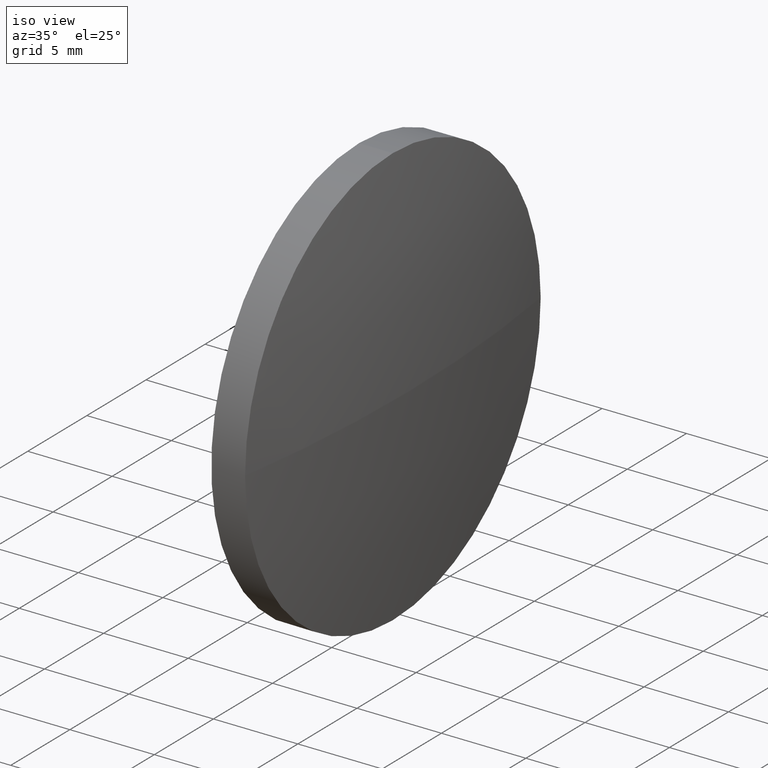
[diagram: clean part render]
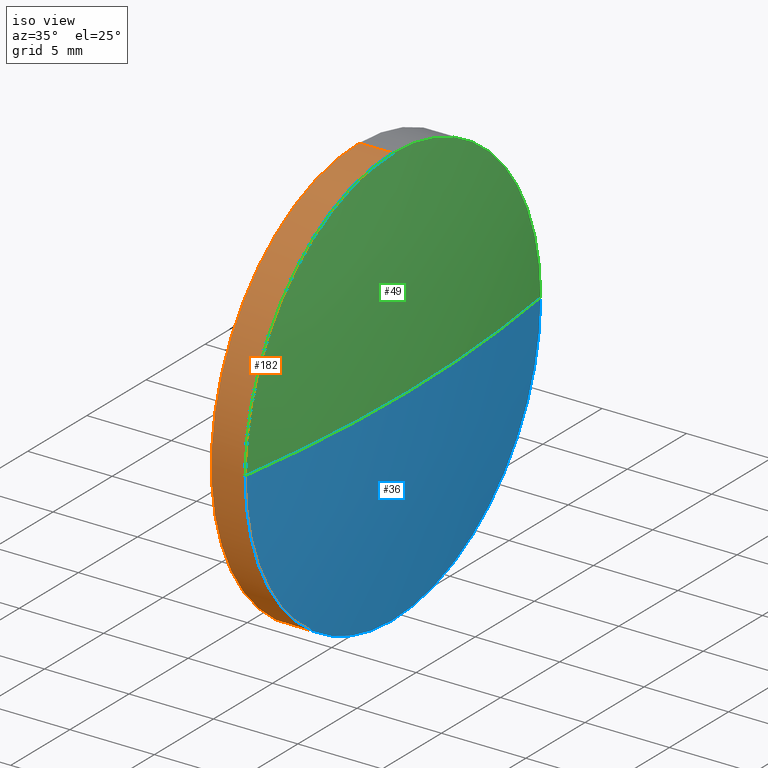
[diagram: same view with three faces highlighted in distinct colors, each labeled with its STEP entity id]
A machine part, iso view with three faces highlighted in distinct colors.
Their STEP definitions:

[orange] entity #182 — the highlighted cylindrical surface (partial cylindrical patch) has radius 12.5 mm, axis along (-1, -0, -0).
#1 = AXIS2_PLACEMENT_3D ( 'NONE', #116, #34, #56 ) ;
#2 = DIRECTION ( 'NONE',  ( -1.000000000000000000, -0.0000000000000000000, -0.0000000000000000000 ) ) ;
#11 = EDGE_CURVE ( 'NONE', #112, #133, #66, .T. ) ;
#17 = DIRECTION ( 'NONE',  ( -1.000000000000000000, -0.0000000000000000000, -0.0000000000000000000 ) ) ;
#25 = CIRCLE ( 'NONE', #64, 12.49999999999999600 ) ;
#34 = DIRECTION ( 'NONE',  ( -1.000000000000000000, -0.0000000000000000000, -0.0000000000000000000 ) ) ;
#37 = EDGE_CURVE ( 'NONE', #133, #82, #153, .T. ) ;
#38 = ORIENTED_EDGE ( 'NONE', *, *, #37, .F. ) ;
#44 = CARTESIAN_POINT ( 'NONE',  ( 481.2856830455023700, 78.34035694524027300, 0.0000000000000000000 ) ) ;
#45 = DIRECTION ( 'NONE',  ( -1.000000000000000000, -0.0000000000000000000, -0.0000000000000000000 ) ) ;
#46 = VERTEX_POINT ( 'NONE', #170 ) ;
#52 = CARTESIAN_POINT ( 'NONE',  ( 479.2856830455023700, 78.34035694524027300, -12.49999999999999600 ) ) ;
#54 = CARTESIAN_POINT ( 'NONE',  ( 479.2856830455023700, 78.34035694524027300, 12.49999999999999600 ) ) ;
#56 = DIRECTION ( 'NONE',  ( 0.0000000000000000000, 0.0000000000000000000, 1.000000000000000000 ) ) ;
#58 = DIRECTION ( 'NONE',  ( -1.000000000000000000, -0.0000000000000000000, -0.0000000000000000000 ) ) ;
#64 = AXIS2_PLACEMENT_3D ( 'NONE', #99, #58, #97 ) ;
#66 = LINE ( 'NONE', #185, #106 ) ;
#71 = ORIENTED_EDGE ( 'NONE', *, *, #186, .T. ) ;
#73 = CIRCLE ( 'NONE', #121, 12.49999999999999600 ) ;
#74 = CARTESIAN_POINT ( 'NONE',  ( 481.2856830455023700, 78.34035694524027300, 12.49999999999999600 ) ) ;
#82 = VERTEX_POINT ( 'NONE', #54 ) ;
#90 = DIRECTION ( 'NONE',  ( 0.0000000000000000000, 0.0000000000000000000, 1.000000000000000000 ) ) ;
#92 = FACE_OUTER_BOUND ( 'NONE', #110, .T. ) ;
#97 = DIRECTION ( 'NONE',  ( 0.0000000000000000000, 0.0000000000000000000, 1.000000000000000000 ) ) ;
#99 = CARTESIAN_POINT ( 'NONE',  ( 481.2856830455023700, 78.34035694524027300, 0.0000000000000000000 ) ) ;
#105 = ORIENTED_EDGE ( 'NONE', *, *, #152, .T. ) ;
#106 = VECTOR ( 'NONE', #17, 1000.000000000000000 ) ;
#110 = EDGE_LOOP ( 'NONE', ( #120, #151, #105, #71, #38 ) ) ;
#112 = VERTEX_POINT ( 'NONE', #138 ) ;
#116 = CARTESIAN_POINT ( 'NONE',  ( 477.2565754670653700, 78.34035694524027300, 0.0000000000000000000 ) ) ;
#117 = VECTOR ( 'NONE', #45, 1000.000000000000000 ) ;
#120 = ORIENTED_EDGE ( 'NONE', *, *, #11, .F. ) ;
#121 = AXIS2_PLACEMENT_3D ( 'NONE', #44, #179, #90 ) ;
#122 = CYLINDRICAL_SURFACE ( 'NONE', #1, 12.49999999999999600 ) ;
#133 = VERTEX_POINT ( 'NONE', #52 ) ;
#138 = CARTESIAN_POINT ( 'NONE',  ( 481.2856830455023700, 78.34035694524027300, -12.49999999999999600 ) ) ;
#140 = VERTEX_POINT ( 'NONE', #74 ) ;
#142 = CARTESIAN_POINT ( 'NONE',  ( 479.2856830455023700, 78.34035694524027300, 0.0000000000000000000 ) ) ;
#151 = ORIENTED_EDGE ( 'NONE', *, *, #165, .T. ) ;
#152 = EDGE_CURVE ( 'NONE', #46, #140, #73, .T. ) ;
#153 = CIRCLE ( 'NONE', #183, 12.49999999999999600 ) ;
#156 = DIRECTION ( 'NONE',  ( 0.0000000000000000000, 0.0000000000000000000, 1.000000000000000000 ) ) ;
#159 = LINE ( 'NONE', #162, #117 ) ;
#162 = CARTESIAN_POINT ( 'NONE',  ( 477.2565754670653700, 78.34035694524027300, 12.49999999999999600 ) ) ;
#165 = EDGE_CURVE ( 'NONE', #112, #46, #25, .T. ) ;
#170 = CARTESIAN_POINT ( 'NONE',  ( 481.2856830455023700, 65.84035694524028800, 0.0000000000000000000 ) ) ;
#179 = DIRECTION ( 'NONE',  ( -1.000000000000000000, -0.0000000000000000000, -0.0000000000000000000 ) ) ;
#182 = ADVANCED_FACE ( 'NONE', ( #92 ), #122, .T. ) ;
#183 = AXIS2_PLACEMENT_3D ( 'NONE', #142, #2, #156 ) ;
#185 = CARTESIAN_POINT ( 'NONE',  ( 477.2565754670653700, 78.34035694524027300, -12.49999999999999600 ) ) ;
#186 = EDGE_CURVE ( 'NONE', #140, #82, #159, .T. ) ;

[blue] entity #36 — the highlighted spherical surface has radius 82.7118 mm.
#5 = DIRECTION ( 'NONE',  ( 0.0000000000000000000, -1.224646799147353200E-016, 1.000000000000000000 ) ) ;
#10 = FACE_OUTER_BOUND ( 'NONE', #40, .T. ) ;
#14 = CARTESIAN_POINT ( 'NONE',  ( 481.2856830455023700, 90.84035694524031600, 1.530808498934187800E-015 ) ) ;
#15 = VERTEX_POINT ( 'NONE', #125 ) ;
#16 = DIRECTION ( 'NONE',  ( -1.000000000000000000, -0.0000000000000000000, -0.0000000000000000000 ) ) ;
#21 = CARTESIAN_POINT ( 'NONE',  ( 399.5238409402394400, 78.34035694524033000, 0.0000000000000000000 ) ) ;
#25 = CIRCLE ( 'NONE', #64, 12.49999999999999600 ) ;
#28 = DIRECTION ( 'NONE',  ( 0.0000000000000000000, 0.0000000000000000000, 1.000000000000000000 ) ) ;
#36 = ADVANCED_FACE ( 'NONE', ( #10 ), #141, .T. ) ;
#40 = EDGE_LOOP ( 'NONE', ( #83, #164, #180, #157 ) ) ;
#43 = CARTESIAN_POINT ( 'NONE',  ( 399.5238409402394400, 78.34035694524033000, 0.0000000000000000000 ) ) ;
#46 = VERTEX_POINT ( 'NONE', #170 ) ;
#58 = DIRECTION ( 'NONE',  ( -1.000000000000000000, -0.0000000000000000000, -0.0000000000000000000 ) ) ;
#64 = AXIS2_PLACEMENT_3D ( 'NONE', #99, #58, #97 ) ;
#68 = CARTESIAN_POINT ( 'NONE',  ( 481.2856830455023700, 78.34035694524027300, 0.0000000000000000000 ) ) ;
#69 = DIRECTION ( 'NONE',  ( 0.0000000000000000000, 0.0000000000000000000, 1.000000000000000000 ) ) ;
#81 = CIRCLE ( 'NONE', #100, 82.71184210526288900 ) ;
#83 = ORIENTED_EDGE ( 'NONE', *, *, #94, .F. ) ;
#86 = DIRECTION ( 'NONE',  ( 0.0000000000000000000, -1.000000000000000000, 0.0000000000000000000 ) ) ;
#94 = EDGE_CURVE ( 'NONE', #15, #101, #168, .T. ) ;
#97 = DIRECTION ( 'NONE',  ( 0.0000000000000000000, 0.0000000000000000000, 1.000000000000000000 ) ) ;
#99 = CARTESIAN_POINT ( 'NONE',  ( 481.2856830455023700, 78.34035694524027300, 0.0000000000000000000 ) ) ;
#100 = AXIS2_PLACEMENT_3D ( 'NONE', #21, #128, #145 ) ;
#101 = VERTEX_POINT ( 'NONE', #14 ) ;
#108 = CARTESIAN_POINT ( 'NONE',  ( 399.5238409402394400, 78.34035694524033000, 0.0000000000000000000 ) ) ;
#111 = EDGE_CURVE ( 'NONE', #101, #112, #150, .T. ) ;
#112 = VERTEX_POINT ( 'NONE', #138 ) ;
#123 = EDGE_CURVE ( 'NONE', #15, #46, #81, .T. ) ;
#125 = CARTESIAN_POINT ( 'NONE',  ( 482.2356830455023600, 78.34035694524033000, 0.0000000000000000000 ) ) ;
#128 = DIRECTION ( 'NONE',  ( 0.0000000000000000000, 0.0000000000000000000, -1.000000000000000000 ) ) ;
#137 = DIRECTION ( 'NONE',  ( 0.0000000000000000000, -1.000000000000000000, -1.224646799147353200E-016 ) ) ;
#138 = CARTESIAN_POINT ( 'NONE',  ( 481.2856830455023700, 78.34035694524027300, -12.49999999999999600 ) ) ;
#141 = SPHERICAL_SURFACE ( 'NONE', #171, 82.71184210526288900 ) ;
#145 = DIRECTION ( 'NONE',  ( -1.000000000000000000, 0.0000000000000000000, 0.0000000000000000000 ) ) ;
#146 = AXIS2_PLACEMENT_3D ( 'NONE', #68, #16, #69 ) ;
#150 = CIRCLE ( 'NONE', #146, 12.49999999999999600 ) ;
#155 = AXIS2_PLACEMENT_3D ( 'NONE', #108, #5, #137 ) ;
#157 = ORIENTED_EDGE ( 'NONE', *, *, #111, .F. ) ;
#164 = ORIENTED_EDGE ( 'NONE', *, *, #123, .T. ) ;
#165 = EDGE_CURVE ( 'NONE', #112, #46, #25, .T. ) ;
#168 = CIRCLE ( 'NONE', #155, 82.71184210526288900 ) ;
#170 = CARTESIAN_POINT ( 'NONE',  ( 481.2856830455023700, 65.84035694524028800, 0.0000000000000000000 ) ) ;
#171 = AXIS2_PLACEMENT_3D ( 'NONE', #43, #28, #86 ) ;
#180 = ORIENTED_EDGE ( 'NONE', *, *, #165, .F. ) ;

[green] entity #49 — the highlighted spherical surface has radius 82.7118 mm.
#3 = ORIENTED_EDGE ( 'NONE', *, *, #123, .F. ) ;
#5 = DIRECTION ( 'NONE',  ( 0.0000000000000000000, -1.224646799147353200E-016, 1.000000000000000000 ) ) ;
#12 = AXIS2_PLACEMENT_3D ( 'NONE', #84, #26, #41 ) ;
#14 = CARTESIAN_POINT ( 'NONE',  ( 481.2856830455023700, 90.84035694524031600, 1.530808498934187800E-015 ) ) ;
#15 = VERTEX_POINT ( 'NONE', #125 ) ;
#21 = CARTESIAN_POINT ( 'NONE',  ( 399.5238409402394400, 78.34035694524033000, 0.0000000000000000000 ) ) ;
#26 = DIRECTION ( 'NONE',  ( -1.000000000000000000, -0.0000000000000000000, -0.0000000000000000000 ) ) ;
#27 = CARTESIAN_POINT ( 'NONE',  ( 399.5238409402394400, 78.34035694524033000, 0.0000000000000000000 ) ) ;
#41 = DIRECTION ( 'NONE',  ( 0.0000000000000000000, 0.0000000000000000000, 1.000000000000000000 ) ) ;
#42 = FACE_OUTER_BOUND ( 'NONE', #184, .T. ) ;
#44 = CARTESIAN_POINT ( 'NONE',  ( 481.2856830455023700, 78.34035694524027300, 0.0000000000000000000 ) ) ;
#46 = VERTEX_POINT ( 'NONE', #170 ) ;
#47 = AXIS2_PLACEMENT_3D ( 'NONE', #27, #55, #126 ) ;
#49 = ADVANCED_FACE ( 'NONE', ( #42 ), #131, .T. ) ;
#55 = DIRECTION ( 'NONE',  ( 0.0000000000000000000, 0.0000000000000000000, 1.000000000000000000 ) ) ;
#61 = CIRCLE ( 'NONE', #12, 12.49999999999999600 ) ;
#70 = ORIENTED_EDGE ( 'NONE', *, *, #94, .T. ) ;
#73 = CIRCLE ( 'NONE', #121, 12.49999999999999600 ) ;
#74 = CARTESIAN_POINT ( 'NONE',  ( 481.2856830455023700, 78.34035694524027300, 12.49999999999999600 ) ) ;
#81 = CIRCLE ( 'NONE', #100, 82.71184210526288900 ) ;
#84 = CARTESIAN_POINT ( 'NONE',  ( 481.2856830455023700, 78.34035694524027300, 0.0000000000000000000 ) ) ;
#89 = EDGE_CURVE ( 'NONE', #140, #101, #61, .T. ) ;
#90 = DIRECTION ( 'NONE',  ( 0.0000000000000000000, 0.0000000000000000000, 1.000000000000000000 ) ) ;
#94 = EDGE_CURVE ( 'NONE', #15, #101, #168, .T. ) ;
#100 = AXIS2_PLACEMENT_3D ( 'NONE', #21, #128, #145 ) ;
#101 = VERTEX_POINT ( 'NONE', #14 ) ;
#108 = CARTESIAN_POINT ( 'NONE',  ( 399.5238409402394400, 78.34035694524033000, 0.0000000000000000000 ) ) ;
#121 = AXIS2_PLACEMENT_3D ( 'NONE', #44, #179, #90 ) ;
#123 = EDGE_CURVE ( 'NONE', #15, #46, #81, .T. ) ;
#125 = CARTESIAN_POINT ( 'NONE',  ( 482.2356830455023600, 78.34035694524033000, 0.0000000000000000000 ) ) ;
#126 = DIRECTION ( 'NONE',  ( 0.0000000000000000000, -1.000000000000000000, 0.0000000000000000000 ) ) ;
#128 = DIRECTION ( 'NONE',  ( 0.0000000000000000000, 0.0000000000000000000, -1.000000000000000000 ) ) ;
#131 = SPHERICAL_SURFACE ( 'NONE', #47, 82.71184210526288900 ) ;
#137 = DIRECTION ( 'NONE',  ( 0.0000000000000000000, -1.000000000000000000, -1.224646799147353200E-016 ) ) ;
#140 = VERTEX_POINT ( 'NONE', #74 ) ;
#145 = DIRECTION ( 'NONE',  ( -1.000000000000000000, 0.0000000000000000000, 0.0000000000000000000 ) ) ;
#149 = ORIENTED_EDGE ( 'NONE', *, *, #89, .F. ) ;
#152 = EDGE_CURVE ( 'NONE', #46, #140, #73, .T. ) ;
#155 = AXIS2_PLACEMENT_3D ( 'NONE', #108, #5, #137 ) ;
#168 = CIRCLE ( 'NONE', #155, 82.71184210526288900 ) ;
#170 = CARTESIAN_POINT ( 'NONE',  ( 481.2856830455023700, 65.84035694524028800, 0.0000000000000000000 ) ) ;
#172 = ORIENTED_EDGE ( 'NONE', *, *, #152, .F. ) ;
#179 = DIRECTION ( 'NONE',  ( -1.000000000000000000, -0.0000000000000000000, -0.0000000000000000000 ) ) ;
#184 = EDGE_LOOP ( 'NONE', ( #3, #70, #149, #172 ) ) ;